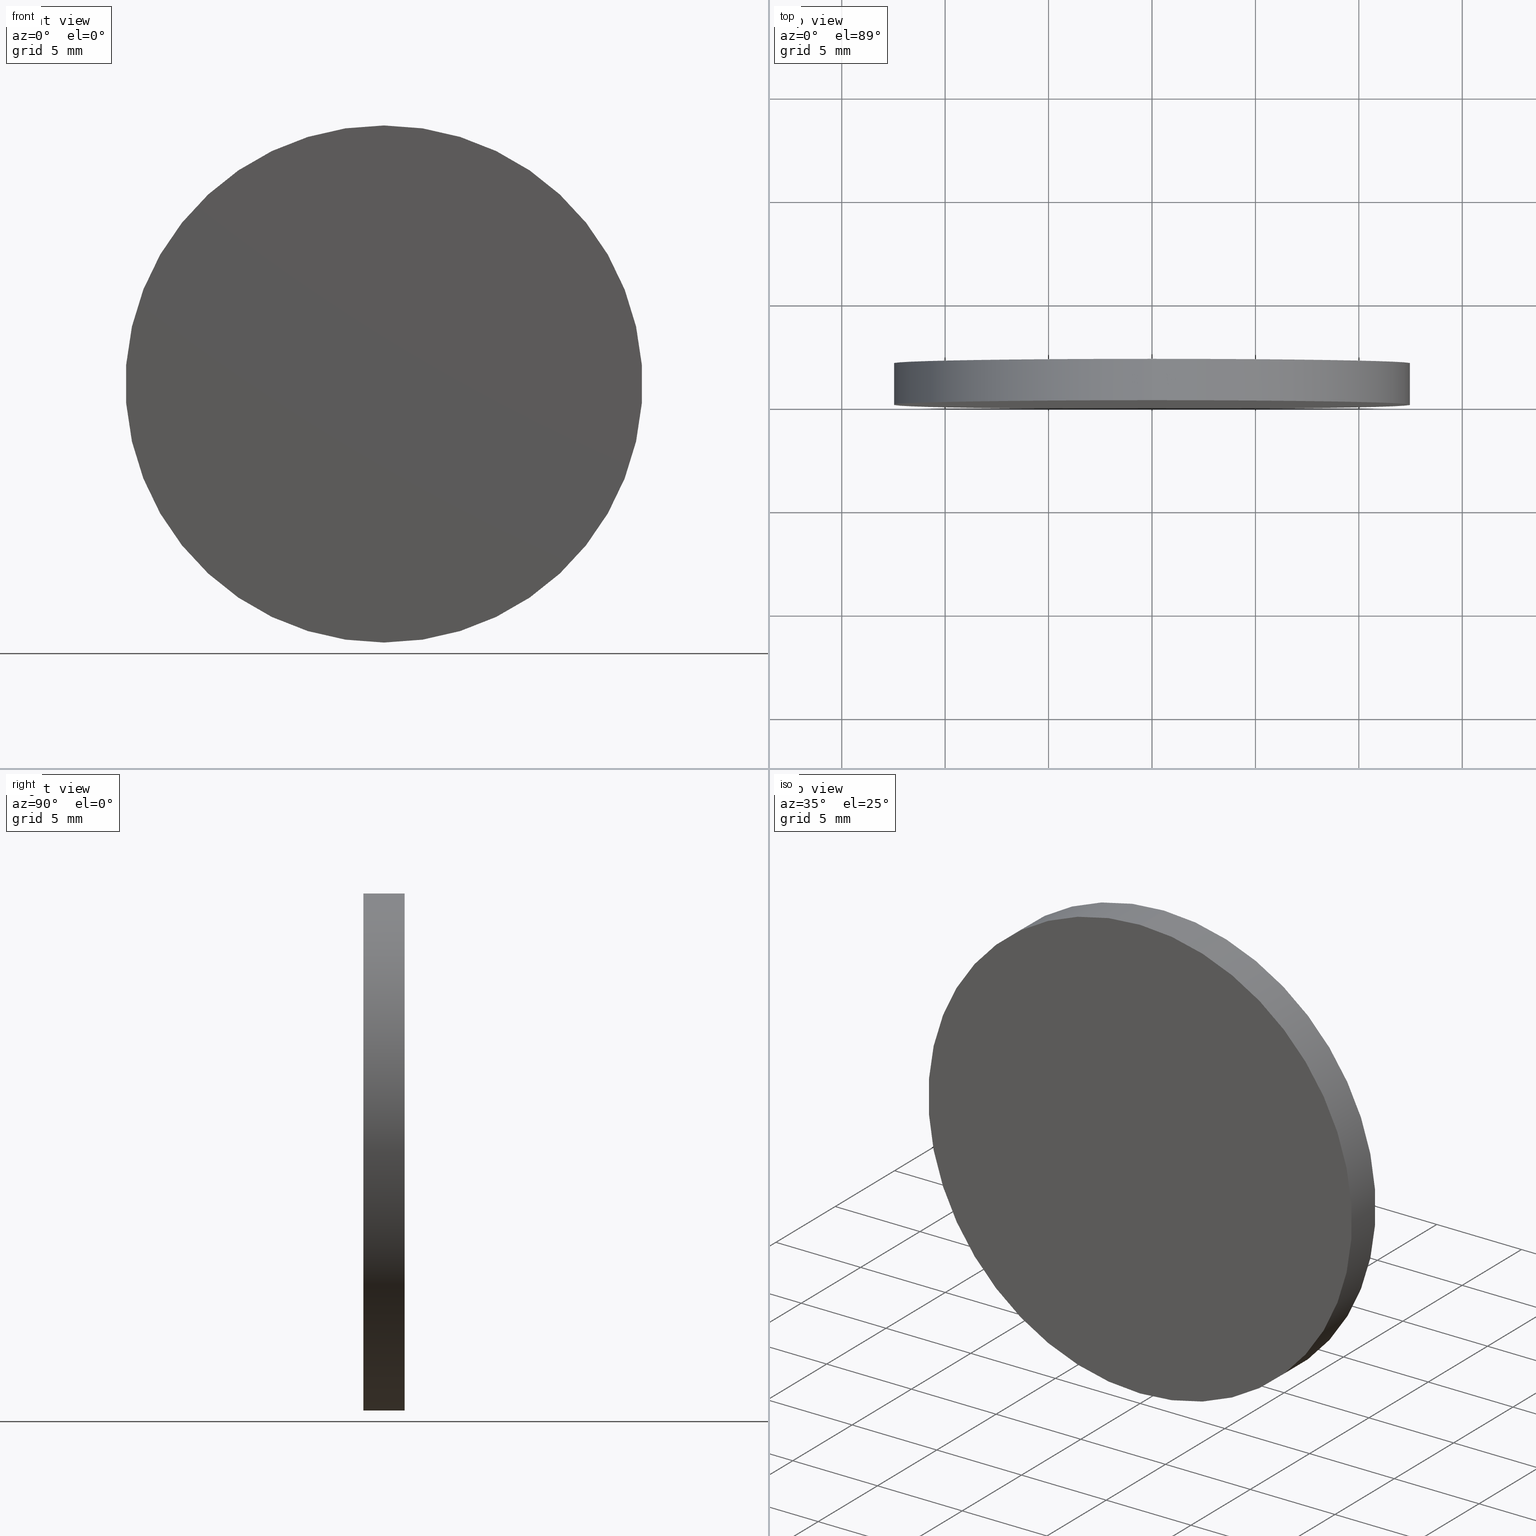
[diagram: canonical four-view strip — front | top / right | iso, engineering-drawing reading convention]
A machine part, canonical four-view strip (front | top / right | iso — engineering-drawing reading convention). The complete STEP part file that produces these views, byte-faithful:
ISO-10303-21;
HEADER;
FILE_DESCRIPTION (( 'STEP AP214' ),
    '1' );
FILE_NAME ('258511.STEP',
    '2019-08-07T02:16:34',
    ( 'user' ),
    ( '΢���й�' ),
    'SwSTEP 2.0',
    'SolidWorks 2016',
    '' );
FILE_SCHEMA (( 'AUTOMOTIVE_DESIGN' ));
ENDSEC;

DATA;
#1 = FACE_OUTER_BOUND ( 'NONE', #140, .T. ) ;
#2 = CYLINDRICAL_SURFACE ( 'NONE', #86, 12.50000000000000000 ) ;
#3 = VERTEX_POINT ( 'NONE', #73 ) ;
#4 = DIRECTION ( 'NONE',  ( 0.0000000000000000000, 0.0000000000000000000, 1.000000000000000000 ) ) ;
#5 = COLOUR_RGB ( '',1.000000000000000000, 1.000000000000000000, 1.000000000000000000 ) ;
#6 = CARTESIAN_POINT ( 'NONE',  ( 0.0000000000000000000, 2.000000000000000000, 0.0000000000000000000 ) ) ;
#7 = EDGE_CURVE ( 'NONE', #78, #74, #125, .T. ) ;
#8 =( NAMED_UNIT ( * ) SI_UNIT ( $, .STERADIAN. ) SOLID_ANGLE_UNIT ( ) );
#9 =( NAMED_UNIT ( * ) SI_UNIT ( $, .STERADIAN. ) SOLID_ANGLE_UNIT ( ) );
#10 = PRESENTATION_STYLE_ASSIGNMENT (( #22 ) ) ;
#11 = FACE_OUTER_BOUND ( 'NONE', #45, .T. ) ;
#12 = ORIENTED_EDGE ( 'NONE', *, *, #7, .F. ) ;
#13 =( NAMED_UNIT ( * ) PLANE_ANGLE_UNIT ( ) SI_UNIT ( $, .RADIAN. ) );
#14 = DIRECTION ( 'NONE',  ( 0.0000000000000000000, 1.000000000000000000, 0.0000000000000000000 ) ) ;
#15 = AXIS2_PLACEMENT_3D ( 'NONE', #32, #138, #25 ) ;
#16 = ORIENTED_EDGE ( 'NONE', *, *, #30, .F. ) ;
#17 =( LENGTH_UNIT ( ) NAMED_UNIT ( * ) SI_UNIT ( .MILLI., .METRE. ) );
#18 = EDGE_CURVE ( 'NONE', #3, #76, #134, .T. ) ;
#19 = ORIENTED_EDGE ( 'NONE', *, *, #18, .F. ) ;
#20 = ORIENTED_EDGE ( 'NONE', *, *, #50, .F. ) ;
#21 = PRODUCT_DEFINITION ( 'δ֪', '', #28, #132 ) ;
#22 = SURFACE_STYLE_USAGE ( .BOTH. , #102 ) ;
#23 = DIRECTION ( 'NONE',  ( 0.0000000000000000000, 0.0000000000000000000, -1.000000000000000000 ) ) ;
#24 = EDGE_CURVE ( 'NONE', #76, #74, #67, .T. ) ;
#25 = DIRECTION ( 'NONE',  ( 1.000000000000000000, 0.0000000000000000000, 0.0000000000000000000 ) ) ;
#26 = SURFACE_SIDE_STYLE ('',( #42 ) ) ;
#27 = ORIENTED_EDGE ( 'NONE', *, *, #18, .T. ) ;
#28 = PRODUCT_DEFINITION_FORMATION_WITH_SPECIFIED_SOURCE ( '�κ�', '', #101, .NOT_KNOWN. ) ;
#29 = CIRCLE ( 'NONE', #71, 12.50000000000000000 ) ;
#30 = EDGE_CURVE ( 'NONE', #3, #78, #31, .T. ) ;
#31 = CIRCLE ( 'NONE', #48, 12.50000000000000000 ) ;
#32 = CARTESIAN_POINT ( 'NONE',  ( 0.0000000000000000000, 0.0000000000000000000, 0.0000000000000000000 ) ) ;
#33 = FILL_AREA_STYLE ('',( #135 ) ) ;
#34 = CARTESIAN_POINT ( 'NONE',  ( 0.0000000000000000000, 0.0000000000000000000, -12.50000000000000000 ) ) ;
#35 = DIRECTION ( 'NONE',  ( -0.0000000000000000000, -1.000000000000000000, -0.0000000000000000000 ) ) ;
#36 = PRODUCT_RELATED_PRODUCT_CATEGORY ( 'part', '', ( #101 ) ) ;
#37 = VECTOR ( 'NONE', #63, 1000.000000000000000 ) ;
#38 = AXIS2_PLACEMENT_3D ( 'NONE', #60, #127, #47 ) ;
#39 = ADVANCED_FACE ( 'NONE', ( #11 ), #43, .F. ) ;
#40 = AXIS2_PLACEMENT_3D ( 'NONE', #119, #80, #95 ) ;
#41 = APPLICATION_CONTEXT ( 'automotive_design' ) ;
#42 = SURFACE_STYLE_FILL_AREA ( #97 ) ;
#43 = PLANE ( 'NONE',  #90 ) ;
#44 = EDGE_CURVE ( 'NONE', #74, #76, #29, .T. ) ;
#45 = EDGE_LOOP ( 'NONE', ( #110, #46 ) ) ;
#46 = ORIENTED_EDGE ( 'NONE', *, *, #24, .F. ) ;
#47 = DIRECTION ( 'NONE',  ( 0.0000000000000000000, 0.0000000000000000000, 1.000000000000000000 ) ) ;
#48 = AXIS2_PLACEMENT_3D ( 'NONE', #6, #72, #137 ) ;
#49 =( LENGTH_UNIT ( ) NAMED_UNIT ( * ) SI_UNIT ( .MILLI., .METRE. ) );
#50 = EDGE_CURVE ( 'NONE', #78, #3, #116, .T. ) ;
#51 =( NAMED_UNIT ( * ) PLANE_ANGLE_UNIT ( ) SI_UNIT ( $, .RADIAN. ) );
#52 = ORIENTED_EDGE ( 'NONE', *, *, #7, .T. ) ;
#53 = APPLICATION_PROTOCOL_DEFINITION ( 'draft international standard', 'automotive_design', 1998, #120 ) ;
#54 = APPLICATION_PROTOCOL_DEFINITION ( 'draft international standard', 'automotive_design', 1998, #41 ) ;
#55 = ORIENTED_EDGE ( 'NONE', *, *, #44, .T. ) ;
#56 = PRESENTATION_LAYER_ASSIGNMENT (  '', '', ( #112 ) ) ;
#57 = MECHANICAL_DESIGN_GEOMETRIC_PRESENTATION_REPRESENTATION (  '', ( #112 ), #66 ) ;
#58 = CLOSED_SHELL ( 'NONE', ( #121, #107, #109, #39 ) ) ;
#59 = DIRECTION ( 'NONE',  ( -0.0000000000000000000, -1.000000000000000000, -0.0000000000000000000 ) ) ;
#60 = CARTESIAN_POINT ( 'NONE',  ( 0.0000000000000000000, 2.000000000000000000, 0.0000000000000000000 ) ) ;
#61 = SURFACE_STYLE_FILL_AREA ( #33 ) ;
#62 = DIRECTION ( 'NONE',  ( 0.0000000000000000000, 1.000000000000000000, 0.0000000000000000000 ) ) ;
#63 = DIRECTION ( 'NONE',  ( -0.0000000000000000000, -1.000000000000000000, -0.0000000000000000000 ) ) ;
#64 = SHAPE_DEFINITION_REPRESENTATION ( #65, #111 ) ;
#65 = PRODUCT_DEFINITION_SHAPE ( 'NONE', 'NONE',  #21 ) ;
#66 =( GEOMETRIC_REPRESENTATION_CONTEXT ( 3 ) GLOBAL_UNCERTAINTY_ASSIGNED_CONTEXT ( ( #84 ) ) GLOBAL_UNIT_ASSIGNED_CONTEXT ( ( #91, #13, #79 ) ) REPRESENTATION_CONTEXT ( 'NONE', 'WORKASPACE' ) );
#67 = CIRCLE ( 'NONE', #40, 12.50000000000000000 ) ;
#68 = EDGE_LOOP ( 'NONE', ( #16, #27, #130, #12 ) ) ;
#69 = CARTESIAN_POINT ( 'NONE',  ( 0.0000000000000000000, 2.000000000000000000, 0.0000000000000000000 ) ) ;
#70 = DIRECTION ( 'NONE',  ( 0.0000000000000000000, 0.0000000000000000000, -1.000000000000000000 ) ) ;
#71 = AXIS2_PLACEMENT_3D ( 'NONE', #94, #14, #4 ) ;
#72 = DIRECTION ( 'NONE',  ( 0.0000000000000000000, 1.000000000000000000, 0.0000000000000000000 ) ) ;
#73 = CARTESIAN_POINT ( 'NONE',  ( 1.530808498934191500E-015, 2.000000000000000000, 12.50000000000000000 ) ) ;
#74 = VERTEX_POINT ( 'NONE', #34 ) ;
#75 =( NAMED_UNIT ( * ) PLANE_ANGLE_UNIT ( ) SI_UNIT ( $, .RADIAN. ) );
#76 = VERTEX_POINT ( 'NONE', #103 ) ;
#77 = CARTESIAN_POINT ( 'NONE',  ( 1.530808498934191500E-015, 2.000000000000000000, 12.50000000000000000 ) ) ;
#78 = VERTEX_POINT ( 'NONE', #114 ) ;
#79 =( NAMED_UNIT ( * ) SI_UNIT ( $, .STERADIAN. ) SOLID_ANGLE_UNIT ( ) );
#80 = DIRECTION ( 'NONE',  ( 0.0000000000000000000, 1.000000000000000000, 0.0000000000000000000 ) ) ;
#81 = CARTESIAN_POINT ( 'NONE',  ( 0.0000000000000000000, 0.0000000000000000000, 0.0000000000000000000 ) ) ;
#82 = CARTESIAN_POINT ( 'NONE',  ( 0.0000000000000000000, 2.000000000000000000, -12.50000000000000000 ) ) ;
#83 = FILL_AREA_STYLE_COLOUR ( '', #5 ) ;
#84 = UNCERTAINTY_MEASURE_WITH_UNIT (LENGTH_MEASURE( 1.000000000000000100E-005 ), #91, 'distance_accuracy_value', 'NONE');
#85 = SURFACE_STYLE_USAGE ( .BOTH. , #26 ) ;
#86 = AXIS2_PLACEMENT_3D ( 'NONE', #117, #59, #70 ) ;
#87 = FACE_OUTER_BOUND ( 'NONE', #88, .T. ) ;
#88 = EDGE_LOOP ( 'NONE', ( #98, #105 ) ) ;
#89 = MANIFOLD_SOLID_BREP ( '͹̨-����1', #58 ) ;
#90 = AXIS2_PLACEMENT_3D ( 'NONE', #81, #62, #128 ) ;
#91 =( LENGTH_UNIT ( ) NAMED_UNIT ( * ) SI_UNIT ( .MILLI., .METRE. ) );
#92 = COLOUR_RGB ( '',1.000000000000000000, 1.000000000000000000, 1.000000000000000000 ) ;
#93 = AXIS2_PLACEMENT_3D ( 'NONE', #69, #118, #129 ) ;
#94 = CARTESIAN_POINT ( 'NONE',  ( 0.0000000000000000000, 0.0000000000000000000, 0.0000000000000000000 ) ) ;
#95 = DIRECTION ( 'NONE',  ( 0.0000000000000000000, 0.0000000000000000000, 1.000000000000000000 ) ) ;
#96 = VECTOR ( 'NONE', #106, 1000.000000000000000 ) ;
#97 = FILL_AREA_STYLE ('',( #83 ) ) ;
#98 = ORIENTED_EDGE ( 'NONE', *, *, #50, .T. ) ;
#99 =( GEOMETRIC_REPRESENTATION_CONTEXT ( 3 ) GLOBAL_UNCERTAINTY_ASSIGNED_CONTEXT ( ( #122 ) ) GLOBAL_UNIT_ASSIGNED_CONTEXT ( ( #49, #51, #8 ) ) REPRESENTATION_CONTEXT ( 'NONE', 'WORKASPACE' ) );
#100 = PRESENTATION_STYLE_ASSIGNMENT (( #85 ) ) ;
#101 = PRODUCT ( '258511', '258511', '', ( #131 ) ) ;
#102 = SURFACE_SIDE_STYLE ('',( #61 ) ) ;
#103 = CARTESIAN_POINT ( 'NONE',  ( 1.530808498934191500E-015, 0.0000000000000000000, 12.50000000000000000 ) ) ;
#104 = CARTESIAN_POINT ( 'NONE',  ( 0.0000000000000000000, 2.000000000000000000, 0.0000000000000000000 ) ) ;
#105 = ORIENTED_EDGE ( 'NONE', *, *, #30, .T. ) ;
#106 = DIRECTION ( 'NONE',  ( -0.0000000000000000000, -1.000000000000000000, -0.0000000000000000000 ) ) ;
#107 = ADVANCED_FACE ( 'NONE', ( #1 ), #2, .T. ) ;
#108 = AXIS2_PLACEMENT_3D ( 'NONE', #104, #35, #23 ) ;
#109 = ADVANCED_FACE ( 'NONE', ( #87 ), #113, .T. ) ;
#110 = ORIENTED_EDGE ( 'NONE', *, *, #44, .F. ) ;
#111 = ADVANCED_BREP_SHAPE_REPRESENTATION ( '258511', ( #89, #15 ), #99 ) ;
#112 = STYLED_ITEM ( 'NONE', ( #10 ), #89 ) ;
#113 = PLANE ( 'NONE',  #93 ) ;
#114 = CARTESIAN_POINT ( 'NONE',  ( 0.0000000000000000000, 2.000000000000000000, -12.50000000000000000 ) ) ;
#115 = STYLED_ITEM ( 'NONE', ( #100 ), #111 ) ;
#116 = CIRCLE ( 'NONE', #38, 12.50000000000000000 ) ;
#117 = CARTESIAN_POINT ( 'NONE',  ( 0.0000000000000000000, 2.000000000000000000, 0.0000000000000000000 ) ) ;
#118 = DIRECTION ( 'NONE',  ( 0.0000000000000000000, 1.000000000000000000, 0.0000000000000000000 ) ) ;
#119 = CARTESIAN_POINT ( 'NONE',  ( 0.0000000000000000000, 0.0000000000000000000, 0.0000000000000000000 ) ) ;
#120 = APPLICATION_CONTEXT ( 'automotive_design' ) ;
#121 = ADVANCED_FACE ( 'NONE', ( #126 ), #139, .T. ) ;
#122 = UNCERTAINTY_MEASURE_WITH_UNIT (LENGTH_MEASURE( 1.000000000000000100E-005 ), #49, 'distance_accuracy_value', 'NONE');
#123 = PRESENTATION_LAYER_ASSIGNMENT (  '', '', ( #115 ) ) ;
#124 = UNCERTAINTY_MEASURE_WITH_UNIT (LENGTH_MEASURE( 1.000000000000000100E-005 ), #17, 'distance_accuracy_value', 'NONE');
#125 = LINE ( 'NONE', #82, #96 ) ;
#126 = FACE_OUTER_BOUND ( 'NONE', #68, .T. ) ;
#127 = DIRECTION ( 'NONE',  ( 0.0000000000000000000, 1.000000000000000000, 0.0000000000000000000 ) ) ;
#128 = DIRECTION ( 'NONE',  ( 0.0000000000000000000, -0.0000000000000000000, 1.000000000000000000 ) ) ;
#129 = DIRECTION ( 'NONE',  ( 0.0000000000000000000, -0.0000000000000000000, 1.000000000000000000 ) ) ;
#130 = ORIENTED_EDGE ( 'NONE', *, *, #24, .T. ) ;
#131 = PRODUCT_CONTEXT ( 'NONE', #41, 'mechanical' ) ;
#132 = PRODUCT_DEFINITION_CONTEXT ( 'detailed design', #120, 'design' ) ;
#133 = MECHANICAL_DESIGN_GEOMETRIC_PRESENTATION_REPRESENTATION (  '', ( #115 ), #136 ) ;
#134 = LINE ( 'NONE', #77, #37 ) ;
#135 = FILL_AREA_STYLE_COLOUR ( '', #92 ) ;
#136 =( GEOMETRIC_REPRESENTATION_CONTEXT ( 3 ) GLOBAL_UNCERTAINTY_ASSIGNED_CONTEXT ( ( #124 ) ) GLOBAL_UNIT_ASSIGNED_CONTEXT ( ( #17, #75, #9 ) ) REPRESENTATION_CONTEXT ( 'NONE', 'WORKASPACE' ) );
#137 = DIRECTION ( 'NONE',  ( 0.0000000000000000000, 0.0000000000000000000, 1.000000000000000000 ) ) ;
#138 = DIRECTION ( 'NONE',  ( 0.0000000000000000000, 0.0000000000000000000, 1.000000000000000000 ) ) ;
#139 = CYLINDRICAL_SURFACE ( 'NONE', #108, 12.50000000000000000 ) ;
#140 = EDGE_LOOP ( 'NONE', ( #19, #20, #52, #55 ) ) ;
ENDSEC;
END-ISO-10303-21;
